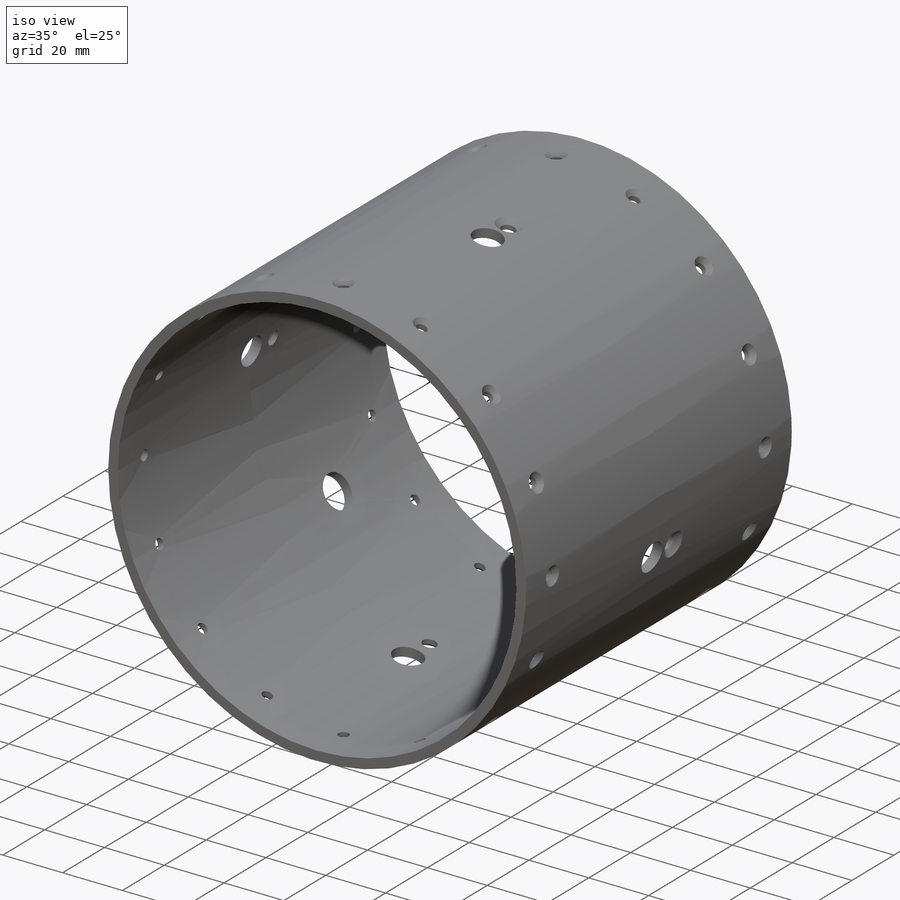
[diagram: iso view]
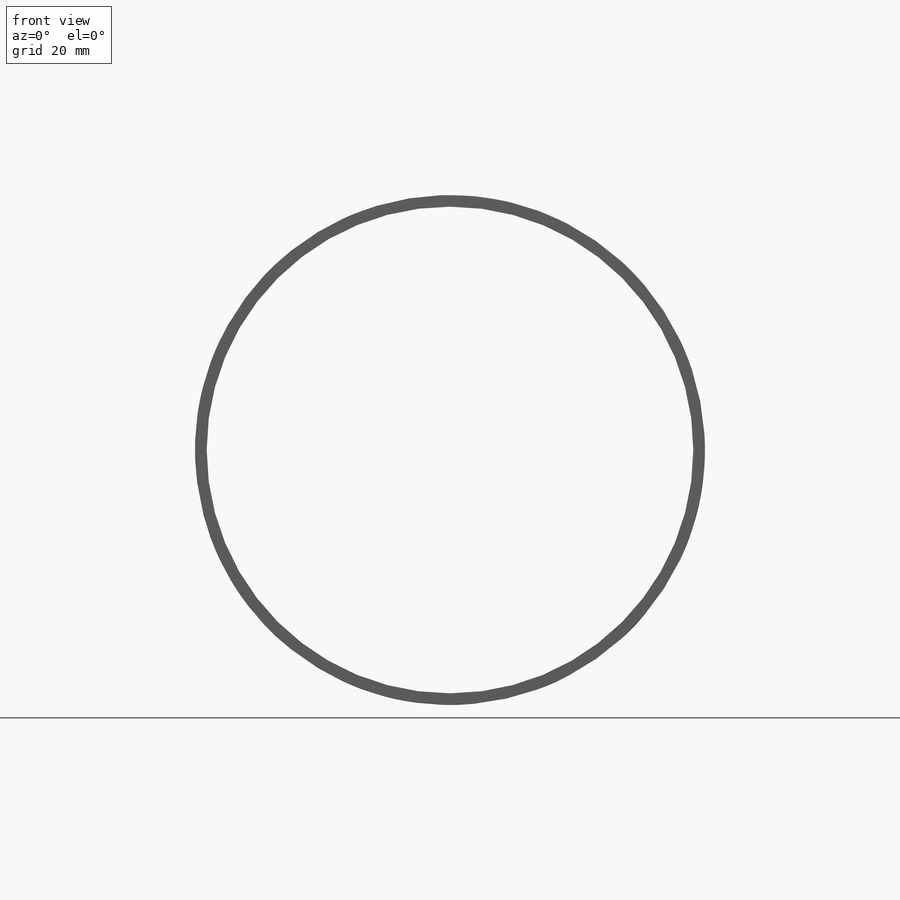
[diagram: front view]
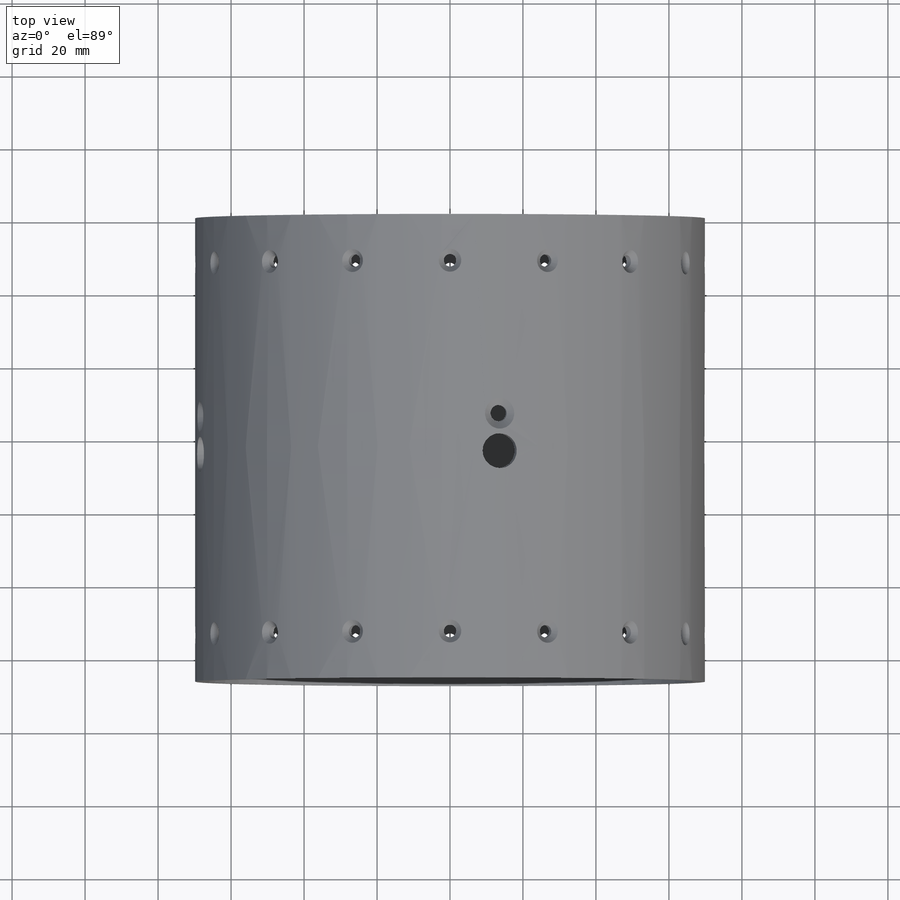
[diagram: top view]
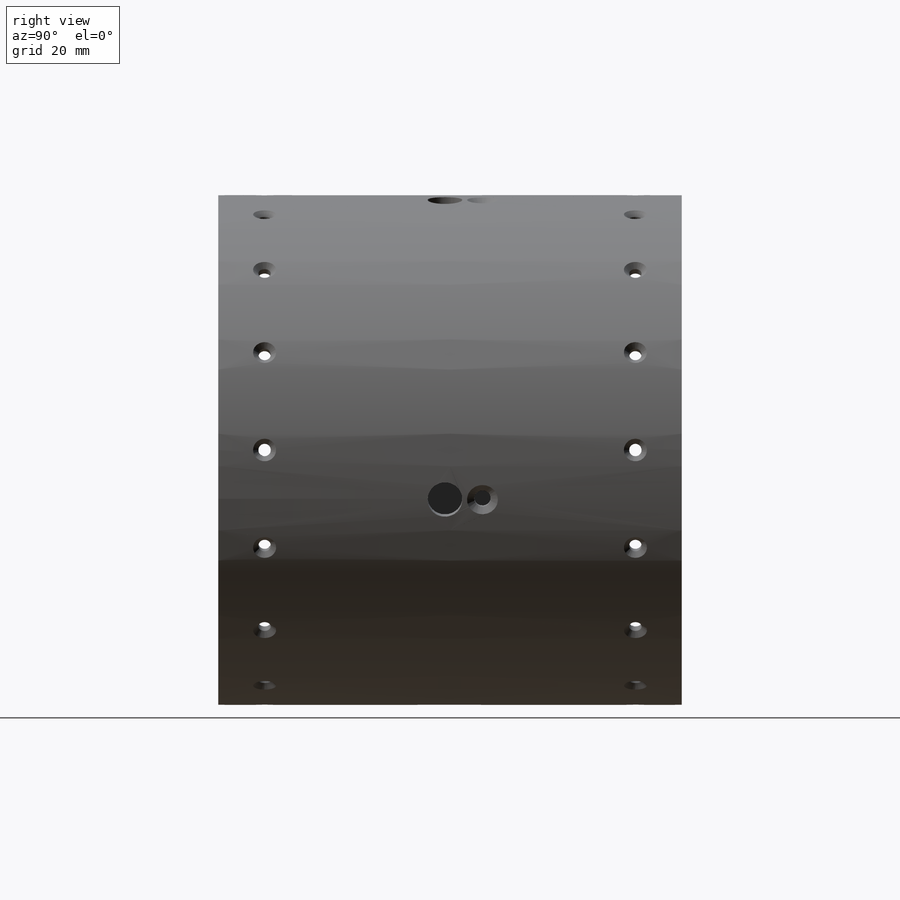
[diagram: right view]
SOLIDWORKS PART (.sldprt)
format: sldprt  version: not decoded by parser v0  size: 1,037,824 bytes
history: native  units: mm
features: sketch x19, plane x8, hole x5, pattern_circular x2, material x1, extrude x1 (+12 scaffold rows collapsed)
feature tree (48):
  scaffold x12  (default folders/planes/origin — collapsed)
  material  "Material <not specified>"
  sketch  "Sketch1"  dims[D1=63.5mm]
  extrude  "Extrude1"  Depth=127mm
  sketch  "Sketch4"  dims[D1=~66.487617mm]
  sketch  "Sketch5"  dims[D1=~66.499861mm]
  plane  "Plane1"  Offset=12.7mm
  plane  "Plane3"  Offset=12.7mm
  sketch  "Sketch11"
  plane  "Plane4"
  hole  "CSK for M3 Flat Head Machine Screw2"  Diameter=3.4mm Depth=12.192mm
  sketch  "Sketch13"
  sketch  "Sketch12"  dims[hole-wizard template sketch: 40 standard entries collapsed; hole parameters kept: c13.Hole Depth=12.192mm c13.Near C'Sink Dia.=6.3mm c13.D4=~33.297463mm c13.Near C'Sink Angle=90.0deg c14.D5=~14.816244mm c14.Drill Angle=118.0deg]
  sketch  "Sketch23"
  plane  "Plane7"
  hole  "CSK for M3 Flat Head Machine Screw1"  Diameter=3.4mm Depth=12.192mm
  sketch  "Sketch29"
  sketch  "Sketch30"  dims[hole-wizard template sketch: 40 standard entries collapsed; hole parameters kept: c13.Hole Depth=12.192mm c13.Near C'Sink Dia.=6.3mm c13.D4=~33.297463mm c13.Near C'Sink Angle=90.0deg c14.D5=~14.816244mm c14.Drill Angle=118.0deg]
  pattern_circular  "CirPattern1"  Count=16 Angle=360deg
  plane  "Plane8"  Offset=62.23mm
  sketch  "Sketch35"  dims[D1=~5.513772deg]
  sketch  "Sketch31"
  plane  "Plane6"
  sketch  "Sketch15"  dims[D1=10.16mm]
  hole  "3/8 (0.375) Diameter Hole1"  Diameter=9.525mm Depth=12.7mm
  sketch  "Sketch33"
  sketch  "Sketch32"  dims[hole-wizard template sketch: 47 standard entries collapsed; hole parameters kept: c15.Hole Depth=12.7mm c15.D3=~14.816244mm c15.Drill Angle=118.0deg]
  hole  "CSK for #8 Flat Head Machine Screw (100)2"  Diameter=4.4958mm Depth=12.192mm
  sketch  "Sketch21"
  sketch  "Sketch22"  dims[hole-wizard template sketch: 39 standard entries collapsed; hole parameters kept: c13.Hole Dia.=4.4958mm c13.Hole Depth=12.192mm c13.Near C'Sink Dia.=8.4328mm c13.D4=~33.297463mm c13.Near C'Sink Angle=100.0deg c14.D5=~14.816244mm c14.Drill Angle=118.0deg]
  pattern_circular  "CirPattern2"  Count=4 Angle=360deg
  plane  "Plane9"  Offset=88.9mm
  sketch  "Sketch36"  dims[c1.D1=69.85mm c2.D1=225.0deg c3.D1=69.85mm c4.D1=45.0deg]
  plane  "Plane10"
  hole  "7/16 (0.4375) Diameter Hole1"  Diameter=11.1125mm Depth=9.652mm
  sketch  "Sketch38"
  sketch  "Sketch39"  dims[hole-wizard template sketch: 46 standard entries collapsed; hole parameters kept: c15.Hole Dia.=11.1125mm c15.Hole Depth=9.652mm c15.D3=~14.816244mm c15.Drill Angle=118.0deg]
decode coverage: 19 of 27 modeling features carry decoded parameters
note: ~ marks probable driven/reference dimensions
summary: Diameter pulled from absorbed wizard sketch
note: suppression state not decoded; provenance and decode notes live in map.json
